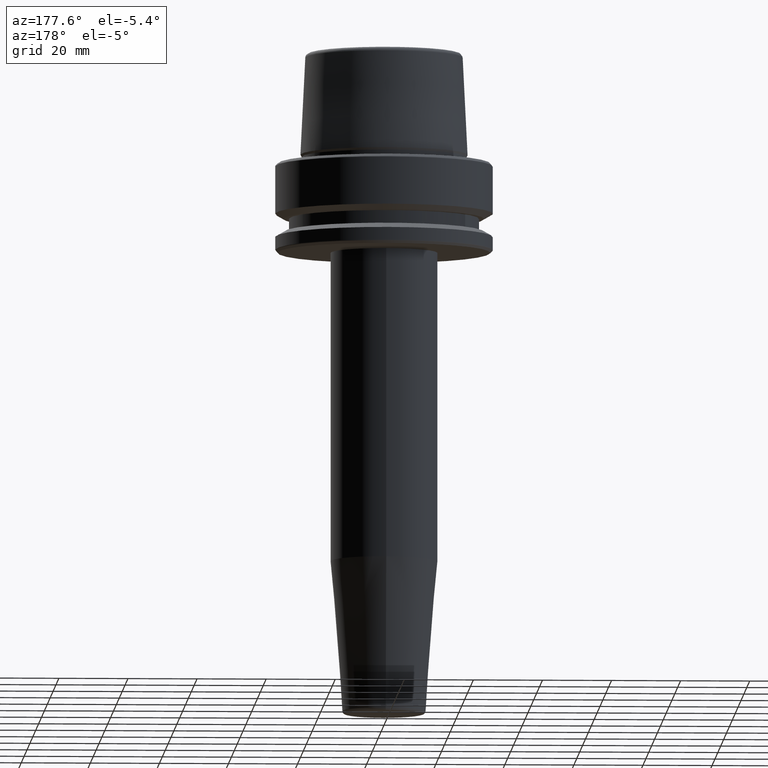
[diagram: clean part render]
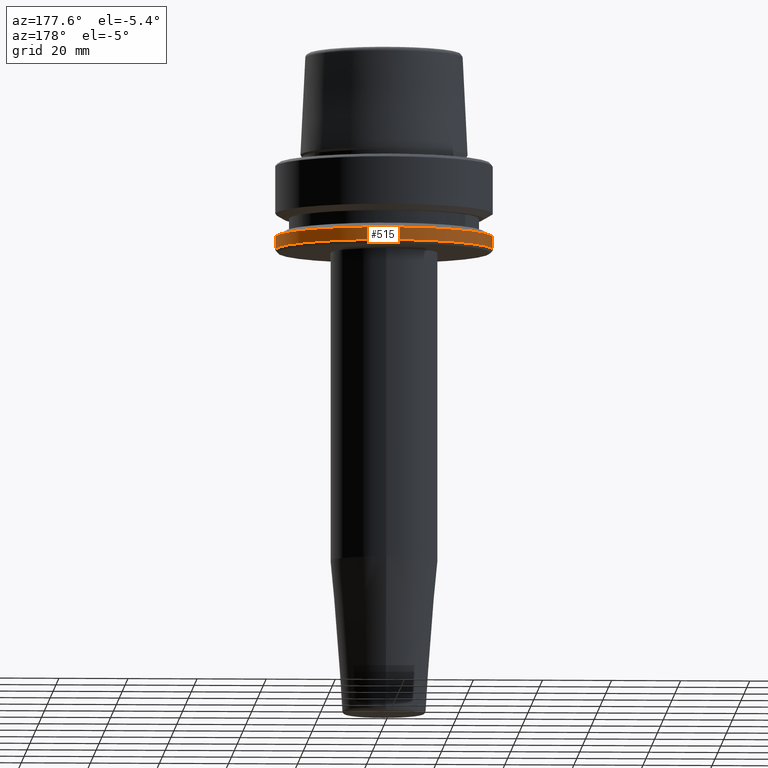
[diagram: same view with one face highlighted and labeled with its STEP entity id]
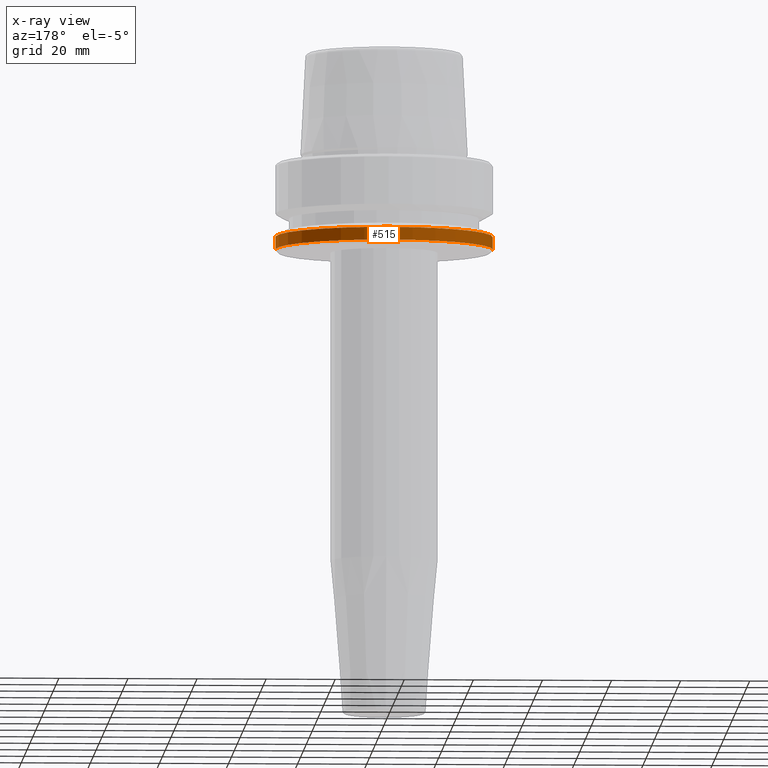
[diagram: x-ray of the same camera — body ghosted, the highlighted face saturated]
A machine part, auxiliary view. The second image highlights one B-rep face of the part: STEP entity #515.
The next image is the same camera in x-ray: the body ghosted, the highlighted face saturated — about 0% of this face is hidden behind the body in this view.
In plain terms, the highlighted cylindrical surface (partial cylindrical patch) has radius 31.5 mm, axis along (-0, -0, 1).
Its self-contained STEP definition (entity closure, byte-faithful):
#18 = VECTOR ( 'NONE', #800, 1000.000000000000000 ) ;
#83 = CARTESIAN_POINT ( 'NONE',  ( 31.50000000000000000, 0.0000000000000000000, -25.03431457505077200 ) ) ;
#92 = EDGE_CURVE ( 'NONE', #884, #323, #947, .T. ) ;
#118 = CARTESIAN_POINT ( 'NONE',  ( 31.50000000000000000, 0.0000000000000000000, 78.96908074195309300 ) ) ;
#150 = FACE_OUTER_BOUND ( 'NONE', #922, .T. ) ;
#185 = ORIENTED_EDGE ( 'NONE', *, *, #690, .T. ) ;
#250 = VERTEX_POINT ( 'NONE', #825 ) ;
#298 = CARTESIAN_POINT ( 'NONE',  ( 31.50000000000000000, 0.0000000000000000000, -21.37749907475931700 ) ) ;
#323 = VERTEX_POINT ( 'NONE', #651 ) ;
#390 = DIRECTION ( 'NONE',  ( -0.0000000000000000000, -0.0000000000000000000, 1.000000000000000000 ) ) ;
#424 = ORIENTED_EDGE ( 'NONE', *, *, #438, .T. ) ;
#428 = DIRECTION ( 'NONE',  ( -0.0000000000000000000, -0.0000000000000000000, 1.000000000000000000 ) ) ;
#430 = DIRECTION ( 'NONE',  ( -0.0000000000000000000, -0.0000000000000000000, 1.000000000000000000 ) ) ;
#438 = EDGE_CURVE ( 'NONE', #815, #250, #1089, .T. ) ;
#481 = CARTESIAN_POINT ( 'NONE',  ( 0.0000000000000000000, 0.0000000000000000000, 78.96908074195309300 ) ) ;
#484 = AXIS2_PLACEMENT_3D ( 'NONE', #481, #1044, #854 ) ;
#485 = VECTOR ( 'NONE', #390, 1000.000000000000000 ) ;
#515 = ADVANCED_FACE ( 'NONE', ( #150 ), #643, .T. ) ;
#547 = LINE ( 'NONE', #118, #18 ) ;
#629 = EDGE_CURVE ( 'NONE', #815, #884, #547, .T. ) ;
#643 = CYLINDRICAL_SURFACE ( 'NONE', #484, 31.50000000000000000 ) ;
#651 = CARTESIAN_POINT ( 'NONE',  ( -31.50000000000000000, 3.857637417314162700E-015, -21.37749907475931700 ) ) ;
#690 = EDGE_CURVE ( 'NONE', #250, #323, #1216, .T. ) ;
#800 = DIRECTION ( 'NONE',  ( -0.0000000000000000000, -0.0000000000000000000, 1.000000000000000000 ) ) ;
#815 = VERTEX_POINT ( 'NONE', #83 ) ;
#825 = CARTESIAN_POINT ( 'NONE',  ( -31.50000000000000000, 3.857637417314161900E-015, -25.03431457505077200 ) ) ;
#854 = DIRECTION ( 'NONE',  ( 1.000000000000000000, 0.0000000000000000000, 0.0000000000000000000 ) ) ;
#884 = VERTEX_POINT ( 'NONE', #298 ) ;
#922 = EDGE_LOOP ( 'NONE', ( #424, #185, #1004, #1226 ) ) ;
#947 = CIRCLE ( 'NONE', #1122, 31.50000000000000000 ) ;
#991 = CARTESIAN_POINT ( 'NONE',  ( 0.0000000000000000000, 0.0000000000000000000, -21.37749907475931700 ) ) ;
#994 = CARTESIAN_POINT ( 'NONE',  ( 0.0000000000000000000, 0.0000000000000000000, -25.03431457505077200 ) ) ;
#1004 = ORIENTED_EDGE ( 'NONE', *, *, #92, .F. ) ;
#1044 = DIRECTION ( 'NONE',  ( -0.0000000000000000000, -0.0000000000000000000, 1.000000000000000000 ) ) ;
#1084 = DIRECTION ( 'NONE',  ( 1.000000000000000000, 0.0000000000000000000, 0.0000000000000000000 ) ) ;
#1086 = DIRECTION ( 'NONE',  ( 1.000000000000000000, 0.0000000000000000000, 0.0000000000000000000 ) ) ;
#1089 = CIRCLE ( 'NONE', #1138, 31.50000000000000000 ) ;
#1122 = AXIS2_PLACEMENT_3D ( 'NONE', #991, #428, #1084 ) ;
#1138 = AXIS2_PLACEMENT_3D ( 'NONE', #994, #430, #1086 ) ;
#1216 = LINE ( 'NONE', #1248, #485 ) ;
#1226 = ORIENTED_EDGE ( 'NONE', *, *, #629, .F. ) ;
#1248 = CARTESIAN_POINT ( 'NONE',  ( -31.50000000000000000, 3.857637417314162700E-015, 78.96908074195309300 ) ) ;